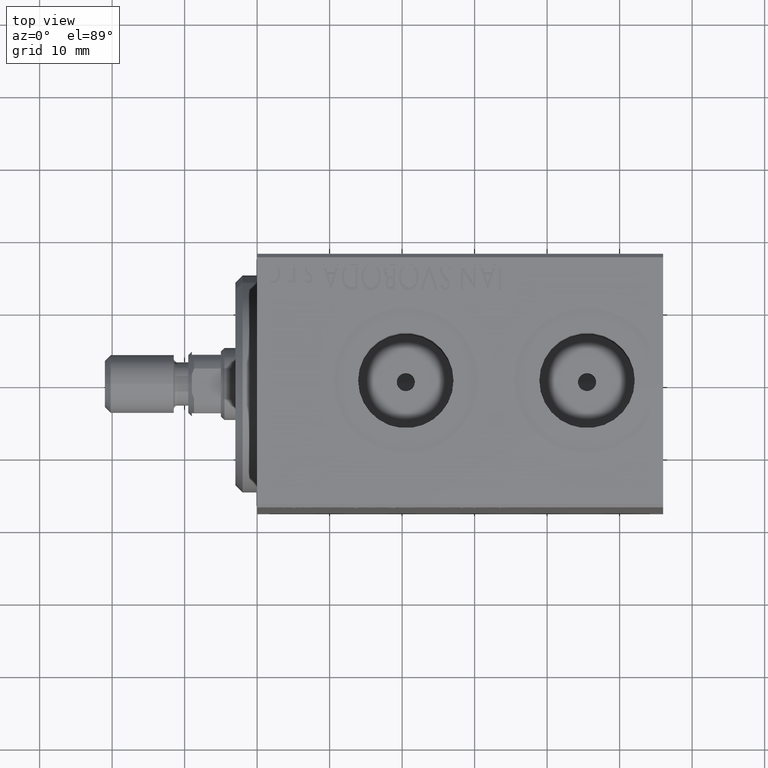
[diagram: clean part render]
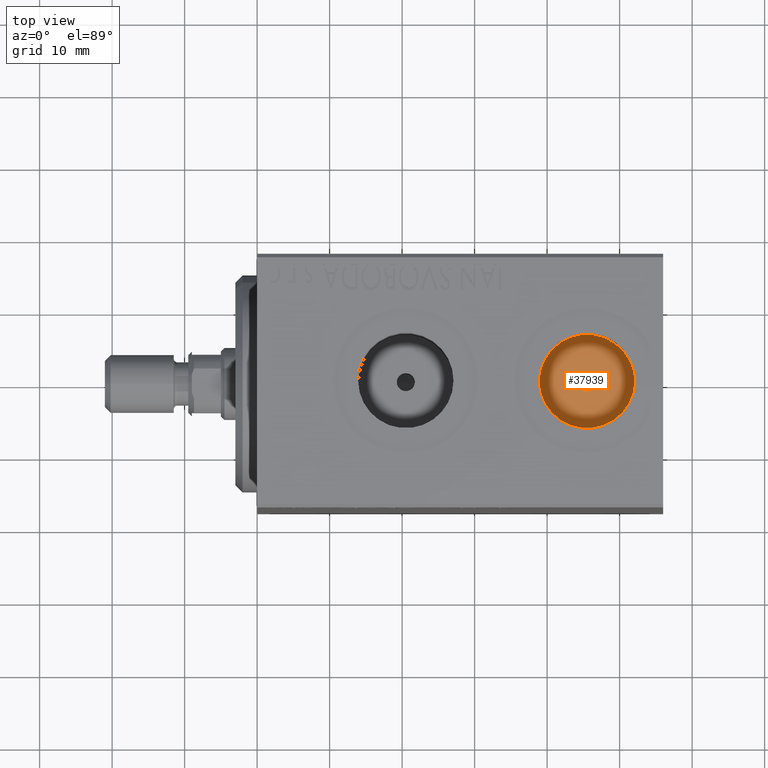
[diagram: same view with one face highlighted and labeled with its STEP entity id]
A machine part, top view. The second image highlights one B-rep face of the part: STEP entity #37939.
In plain terms, the highlighted planar face has unit normal (0, 0, 1).
Its self-contained STEP definition (entity closure, byte-faithful):
#763 = VERTEX_POINT ( 'NONE', #43583 ) ;
#3280 = DIRECTION ( 'NONE',  ( 1.000000000000000000, 0.000000000000000000, 0.000000000000000000 ) ) ;
#5422 = EDGE_LOOP ( 'NONE', ( #31835, #44228 ) ) ;
#5486 = FACE_OUTER_BOUND ( 'NONE', #34175, .T. ) ;
#5937 = DIRECTION ( 'NONE',  ( 0.000000000000000000, 0.000000000000000000, 1.000000000000000000 ) ) ;
#7521 = VERTEX_POINT ( 'NONE', #30334 ) ;
#7835 = EDGE_CURVE ( 'NONE', #32760, #12705, #12669, .T. ) ;
#9529 = FACE_BOUND ( 'NONE', #5422, .T. ) ;
#12460 = DIRECTION ( 'NONE',  ( 1.000000000000000000, 0.000000000000000000, 0.000000000000000000 ) ) ;
#12669 = CIRCLE ( 'NONE', #18394, 6.580000000000002736 ) ;
#12705 = VERTEX_POINT ( 'NONE', #33392 ) ;
#14091 = DIRECTION ( 'NONE',  ( 0.000000000000000000, 0.000000000000000000, 1.000000000000000000 ) ) ;
#14747 = CARTESIAN_POINT ( 'NONE',  ( 45.50000000000000000, -5.451988067355679101E-15, 14.24000000000000021 ) ) ;
#15043 = CIRCLE ( 'NONE', #28690, 1.250000000000001110 ) ;
#15460 = DIRECTION ( 'NONE',  ( 0.000000000000000000, 0.000000000000000000, 1.000000000000000000 ) ) ;
#16279 = CARTESIAN_POINT ( 'NONE',  ( 45.50000000000000000, -5.451988067355679101E-15, 14.24000000000000021 ) ) ;
#16562 = CARTESIAN_POINT ( 'NONE',  ( 52.07999999999999829, -5.451988067355679101E-15, 14.24000000000000021 ) ) ;
#18394 = AXIS2_PLACEMENT_3D ( 'NONE', #14747, #14091, #28461 ) ;
#19208 = CARTESIAN_POINT ( 'NONE',  ( 45.50000000000000000, -5.451988067355679101E-15, 14.24000000000000021 ) ) ;
#21042 = CARTESIAN_POINT ( 'NONE',  ( 45.50000000000000000, -5.451988067355679101E-15, 14.24000000000000021 ) ) ;
#23246 = DIRECTION ( 'NONE',  ( 0.000000000000000000, 0.000000000000000000, 1.000000000000000000 ) ) ;
#24986 = EDGE_CURVE ( 'NONE', #763, #7521, #15043, .T. ) ;
#25438 = ORIENTED_EDGE ( 'NONE', *, *, #7835, .T. ) ;
#25809 = DIRECTION ( 'NONE',  ( 1.000000000000000000, 0.000000000000000000, 0.000000000000000000 ) ) ;
#26399 = DIRECTION ( 'NONE',  ( 1.000000000000000000, 0.000000000000000000, -0.000000000000000000 ) ) ;
#28461 = DIRECTION ( 'NONE',  ( 1.000000000000000000, 0.000000000000000000, 0.000000000000000000 ) ) ;
#28690 = AXIS2_PLACEMENT_3D ( 'NONE', #21042, #34750, #3280 ) ;
#29790 = AXIS2_PLACEMENT_3D ( 'NONE', #19208, #5937, #12460 ) ;
#30265 = AXIS2_PLACEMENT_3D ( 'NONE', #31879, #15460, #25809 ) ;
#30334 = CARTESIAN_POINT ( 'NONE',  ( 46.75000000000000000, -5.451988067355679101E-15, 14.24000000000000021 ) ) ;
#30552 = EDGE_CURVE ( 'NONE', #12705, #32760, #42472, .T. ) ;
#31835 = ORIENTED_EDGE ( 'NONE', *, *, #37913, .F. ) ;
#31879 = CARTESIAN_POINT ( 'NONE',  ( 45.50000000000000000, -5.451988067355679101E-15, 14.24000000000000021 ) ) ;
#32760 = VERTEX_POINT ( 'NONE', #16562 ) ;
#33392 = CARTESIAN_POINT ( 'NONE',  ( 38.91999999999999460, -4.646170473516720848E-15, 14.24000000000000021 ) ) ;
#34175 = EDGE_LOOP ( 'NONE', ( #25438, #42052 ) ) ;
#34750 = DIRECTION ( 'NONE',  ( 0.000000000000000000, 0.000000000000000000, 1.000000000000000000 ) ) ;
#37913 = EDGE_CURVE ( 'NONE', #7521, #763, #38383, .T. ) ;
#37939 = ADVANCED_FACE ( 'NONE', ( #9529, #5486 ), #40117, .T. ) ;
#38383 = CIRCLE ( 'NONE', #29790, 1.250000000000001110 ) ;
#40117 = PLANE ( 'NONE',  #40551 ) ;
#40551 = AXIS2_PLACEMENT_3D ( 'NONE', #16279, #23246, #26399 ) ;
#42052 = ORIENTED_EDGE ( 'NONE', *, *, #30552, .T. ) ;
#42472 = CIRCLE ( 'NONE', #30265, 6.580000000000002736 ) ;
#43583 = CARTESIAN_POINT ( 'NONE',  ( 44.25000000000000000, -5.298907217462260955E-15, 14.24000000000000021 ) ) ;
#44228 = ORIENTED_EDGE ( 'NONE', *, *, #24986, .F. ) ;